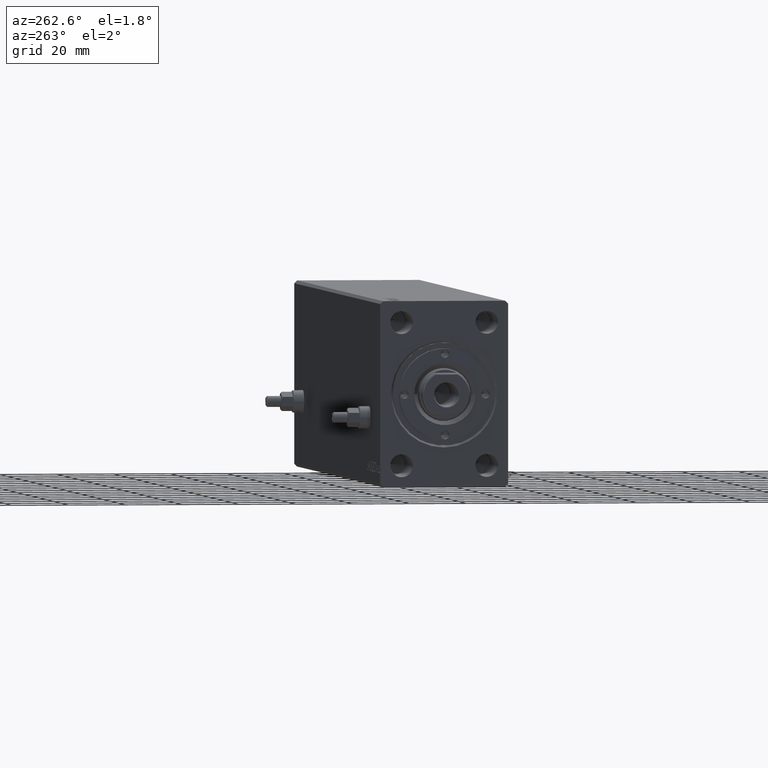
[diagram: clean part render]
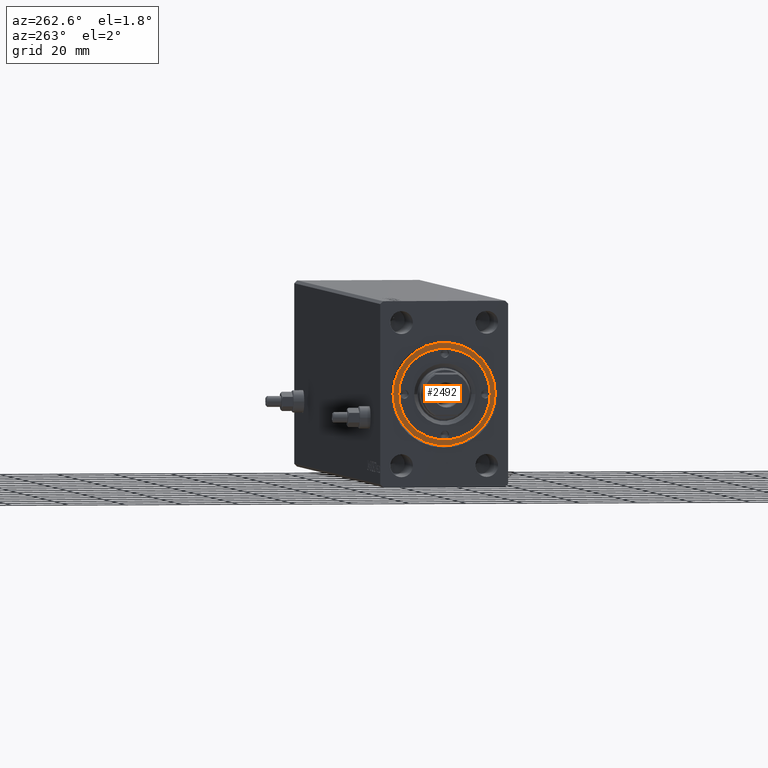
[diagram: same view with one face highlighted and labeled with its STEP entity id]
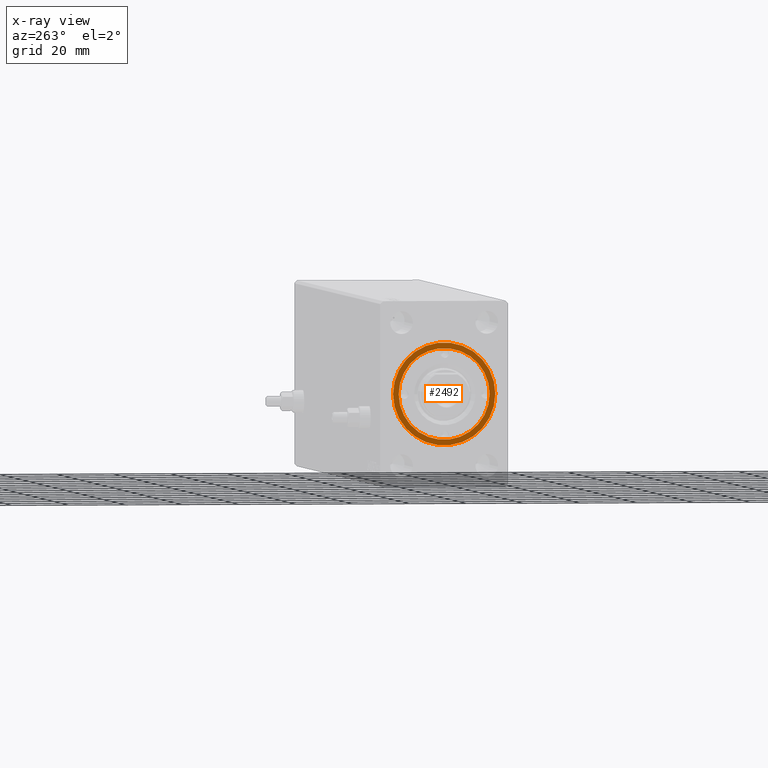
[diagram: x-ray of the same camera — body ghosted, the highlighted face saturated]
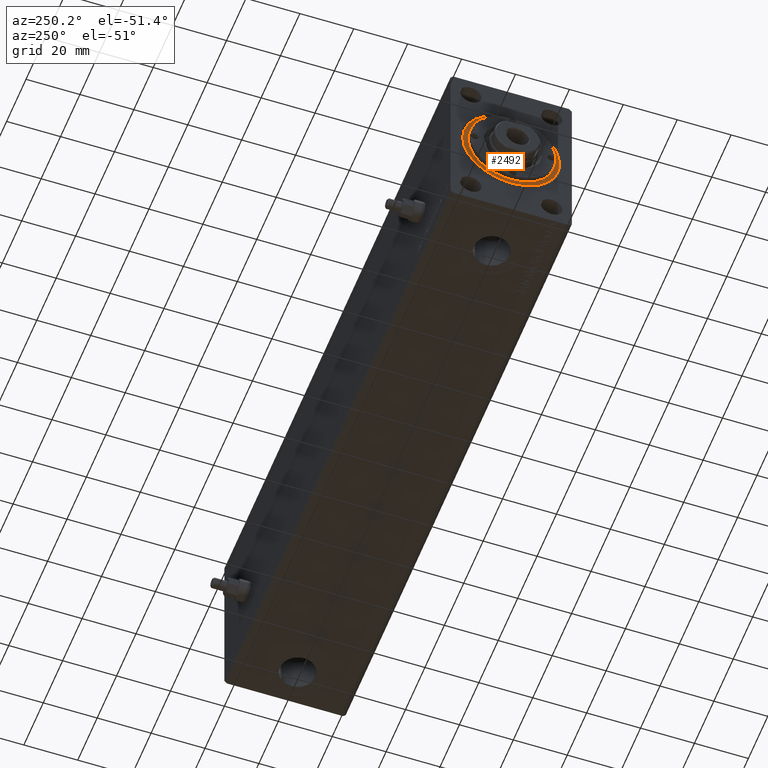
[diagram: same view with one face highlighted and labeled with its STEP entity id]
A machine part, auxiliary view. The second image highlights one B-rep face of the part: STEP entity #2492.
The next image is the same camera in x-ray: the body ghosted, the highlighted face saturated — about 0% of this face is hidden behind the body in this view.
A second angle (auxiliary view) of the same face is appended — the face is thin or edge-on in the first view.
In plain terms, the highlighted planar face has unit normal (-1, 0, 0).
Its self-contained STEP definition (entity closure, byte-faithful):
#1341 = EDGE_LOOP ( 'NONE', ( #26754, #7633 ) ) ;
#1386 = DIRECTION ( 'NONE',  ( 0.000000000000000000, 0.000000000000000000, 1.000000000000000000 ) ) ;
#1568 = AXIS2_PLACEMENT_3D ( 'NONE', #37071, #13054, #40943 ) ;
#2054 = DIRECTION ( 'NONE',  ( 0.000000000000000000, 0.000000000000000000, 1.000000000000000000 ) ) ;
#2076 = VERTEX_POINT ( 'NONE', #23851 ) ;
#2492 = ADVANCED_FACE ( 'NONE', ( #18503, #25574 ), #43650, .T. ) ;
#7018 = EDGE_CURVE ( 'NONE', #2076, #28160, #25657, .T. ) ;
#7633 = ORIENTED_EDGE ( 'NONE', *, *, #23178, .T. ) ;
#8363 = EDGE_LOOP ( 'NONE', ( #43858, #26765 ) ) ;
#8994 = EDGE_CURVE ( 'NONE', #21878, #12465, #29278, .T. ) ;
#10627 = CARTESIAN_POINT ( 'NONE',  ( 18.00000000000000000, 2.204364238465235428E-15, 5.200000000000000178 ) ) ;
#11411 = CARTESIAN_POINT ( 'NONE',  ( 0.000000000000000000, 0.000000000000000000, 5.200000000000000178 ) ) ;
#12151 = CARTESIAN_POINT ( 'NONE',  ( -16.00000000000000000, 0.000000000000000000, 5.200000000000000178 ) ) ;
#12318 = DIRECTION ( 'NONE',  ( 1.000000000000000000, 0.000000000000000000, -0.000000000000000000 ) ) ;
#12465 = VERTEX_POINT ( 'NONE', #35103 ) ;
#13054 = DIRECTION ( 'NONE',  ( 0.000000000000000000, 0.000000000000000000, 1.000000000000000000 ) ) ;
#13674 = AXIS2_PLACEMENT_3D ( 'NONE', #41146, #16687, #42044 ) ;
#15858 = CIRCLE ( 'NONE', #31190, 18.00000000000000000 ) ;
#16687 = DIRECTION ( 'NONE',  ( 0.000000000000000000, 0.000000000000000000, 1.000000000000000000 ) ) ;
#16690 = CARTESIAN_POINT ( 'NONE',  ( 0.000000000000000000, 0.000000000000000000, 5.200000000000000178 ) ) ;
#18503 = FACE_BOUND ( 'NONE', #8363, .T. ) ;
#19669 = EDGE_CURVE ( 'NONE', #12465, #21878, #20273, .T. ) ;
#20273 = CIRCLE ( 'NONE', #13674, 16.00000000000000000 ) ;
#20351 = DIRECTION ( 'NONE',  ( 0.000000000000000000, 0.000000000000000000, 1.000000000000000000 ) ) ;
#21878 = VERTEX_POINT ( 'NONE', #12151 ) ;
#23178 = EDGE_CURVE ( 'NONE', #28160, #2076, #15858, .T. ) ;
#23851 = CARTESIAN_POINT ( 'NONE',  ( -18.00000000000000000, 0.000000000000000000, 5.200000000000000178 ) ) ;
#24928 = DIRECTION ( 'NONE',  ( 1.000000000000000000, 0.000000000000000000, 0.000000000000000000 ) ) ;
#25574 = FACE_OUTER_BOUND ( 'NONE', #1341, .T. ) ;
#25657 = CIRCLE ( 'NONE', #30796, 18.00000000000000000 ) ;
#26754 = ORIENTED_EDGE ( 'NONE', *, *, #7018, .T. ) ;
#26765 = ORIENTED_EDGE ( 'NONE', *, *, #19669, .F. ) ;
#28160 = VERTEX_POINT ( 'NONE', #10627 ) ;
#28808 = CARTESIAN_POINT ( 'NONE',  ( 0.000000000000000000, 0.000000000000000000, 5.200000000000000178 ) ) ;
#29218 = AXIS2_PLACEMENT_3D ( 'NONE', #11411, #2054, #12318 ) ;
#29278 = CIRCLE ( 'NONE', #1568, 16.00000000000000000 ) ;
#30796 = AXIS2_PLACEMENT_3D ( 'NONE', #16690, #20351, #41602 ) ;
#31190 = AXIS2_PLACEMENT_3D ( 'NONE', #28808, #1386, #24928 ) ;
#35103 = CARTESIAN_POINT ( 'NONE',  ( 16.00000000000000000, 1.959434878635765131E-15, 5.200000000000000178 ) ) ;
#37071 = CARTESIAN_POINT ( 'NONE',  ( 0.000000000000000000, 0.000000000000000000, 5.200000000000000178 ) ) ;
#40943 = DIRECTION ( 'NONE',  ( 1.000000000000000000, 0.000000000000000000, 0.000000000000000000 ) ) ;
#41146 = CARTESIAN_POINT ( 'NONE',  ( 0.000000000000000000, 0.000000000000000000, 5.200000000000000178 ) ) ;
#41602 = DIRECTION ( 'NONE',  ( 1.000000000000000000, 0.000000000000000000, 0.000000000000000000 ) ) ;
#42044 = DIRECTION ( 'NONE',  ( 1.000000000000000000, 0.000000000000000000, 0.000000000000000000 ) ) ;
#43650 = PLANE ( 'NONE',  #29218 ) ;
#43858 = ORIENTED_EDGE ( 'NONE', *, *, #8994, .F. ) ;